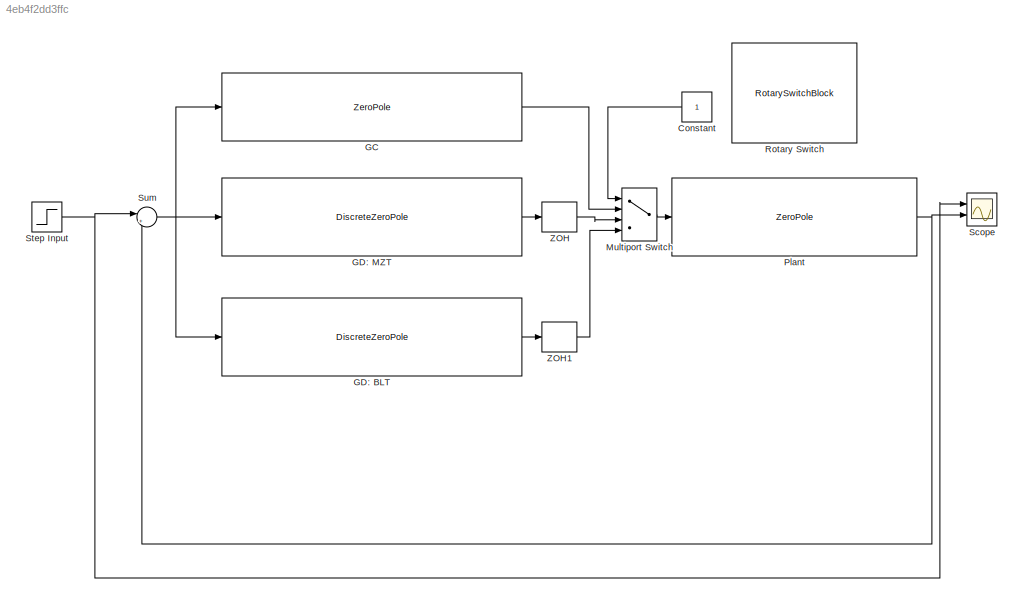
MODEL slx_4eb4f2dd3ffc
KIND model
CONFIG AbsTol = auto
CONFIG EnableMultiTasking = off
CONFIG FixedStep = auto
CONFIG MaxStep = auto
CONFIG MinStep = auto
CONFIG RelTol = 1e-3
CONFIG SampleTimeConstraint = Unconstrained
CONFIG Solver = VariableStepAuto
CONFIG SolverName = VariableStepAuto
CONFIG StartTime = 0.0
CONFIG StopTime = 2
BLOCK [Constant] Constant
BLOCK [ZeroPole] GC
  Gain = 19.0620
  Poles = [0, -10.2083]
  Zeros = [3.7887, -3.9791]
BLOCK [DiscreteZeroPole] GD: BLT
  Gain = 19.0620 * A
  Poles = [1, -C3]
  SampleTime = T
  Zeros = [-C1, -C2]
BLOCK [DiscreteZeroPole] GD: MZT
  Gain = K_M
  Poles = [1, exp(-10.2083*T)]
  SampleTime = T
  Zeros = [exp(3.7887*T), exp(-3.9791*T)]
BLOCK [MultiPortSwitch] Multiport Switch
  InputSameDT = off
  Ports = [4, 1]
  SaturateOnIntegerOverflow = off
BLOCK [ZeroPole] Plant
  Gain = 656.3
  Poles = [-250, -3.9791, +3.7887]
  Zeros = []
BLOCK [RotarySwitchBlock] Rotary Switch
  WebBlockId = 25
BLOCK [Scope] Scope
  Floating = off
  NumInputPorts = 2
  Ports = [2]
  ScopeSpecificationString = Simulink.scopes.TimeScopeBlockCfg('CurrentConfiguration', extmgr.ConfigurationSet(extmgr.Configuration('Core','General UI',true),extmgr.Configuration('Core','Source UI',true),extmgr.Configuration('Sources','WiredSimulink',true),extmgr.Configuration('Visuals','Time Domain',true,'SerializedDisplays',{struct('MinYLimReal','-0.13049','MaxYLimReal','1.17438','YLabelReal','','MinYLimMag','0.00000','MaxY...<+1339ch>
BLOCK [Step] Step Input 
  SampleTime = 0
  Time = 0
BLOCK [Sum] Sum
  IconShape = round
  InputSameDT = off
  Inputs = |+-
  OutDataTypeStr = Inherit: Inherit via internal rule
  Ports = [2, 1]
  SaturateOnIntegerOverflow = off
BLOCK [ZeroOrderHold] ZOH
  SampleTime = T
BLOCK [ZeroOrderHold] ZOH1
  SampleTime = T
LINE Constant:1 -> Multiport Switch:1
LINE GC:1 -> Multiport Switch:2
LINE GD: BLT:1 -> ZOH1:1
LINE GD: MZT:1 -> ZOH:1
LINE Multiport Switch:1 -> Plant:1
NET Plant:1 -> Scope:2, Sum:2
NET Step Input :1 -> Scope:1, Sum:1
NET Sum:1 -> GC:1, GD: BLT:1, GD: MZT:1
LINE ZOH1:1 -> Multiport Switch:4
LINE ZOH:1 -> Multiport Switch:3
note: NET lines group one-source signal fan-out (src -> all destinations, sorted); 1:1 wires keep LINE
